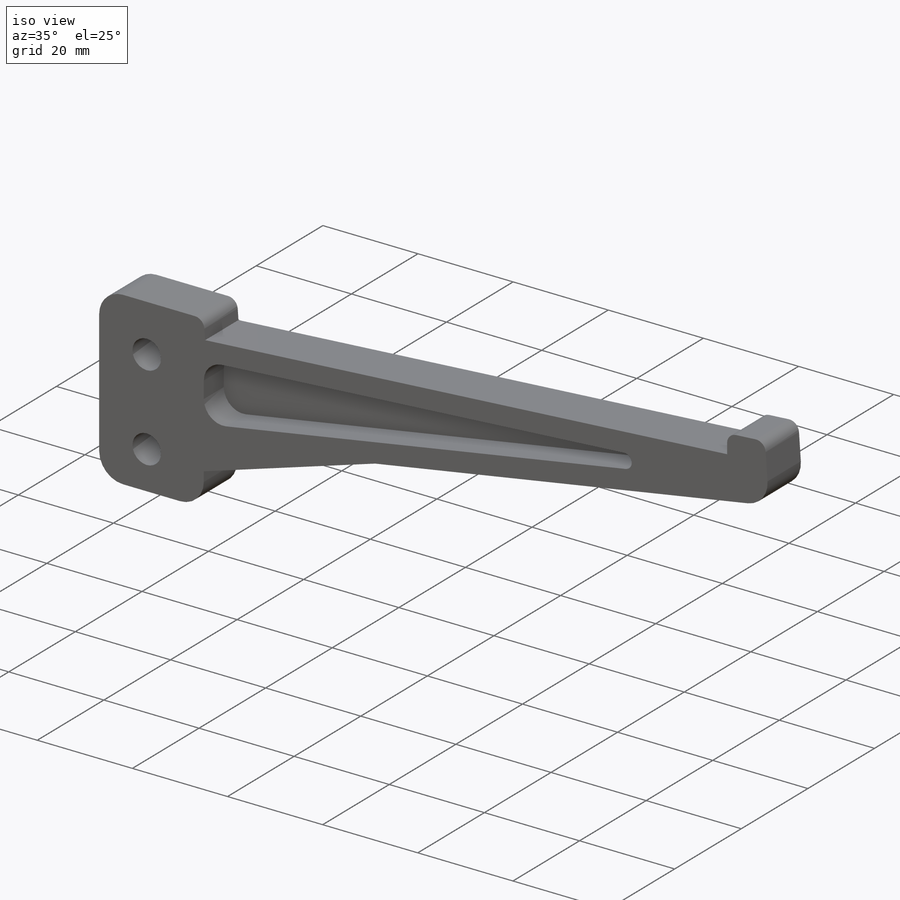
[diagram: iso view]
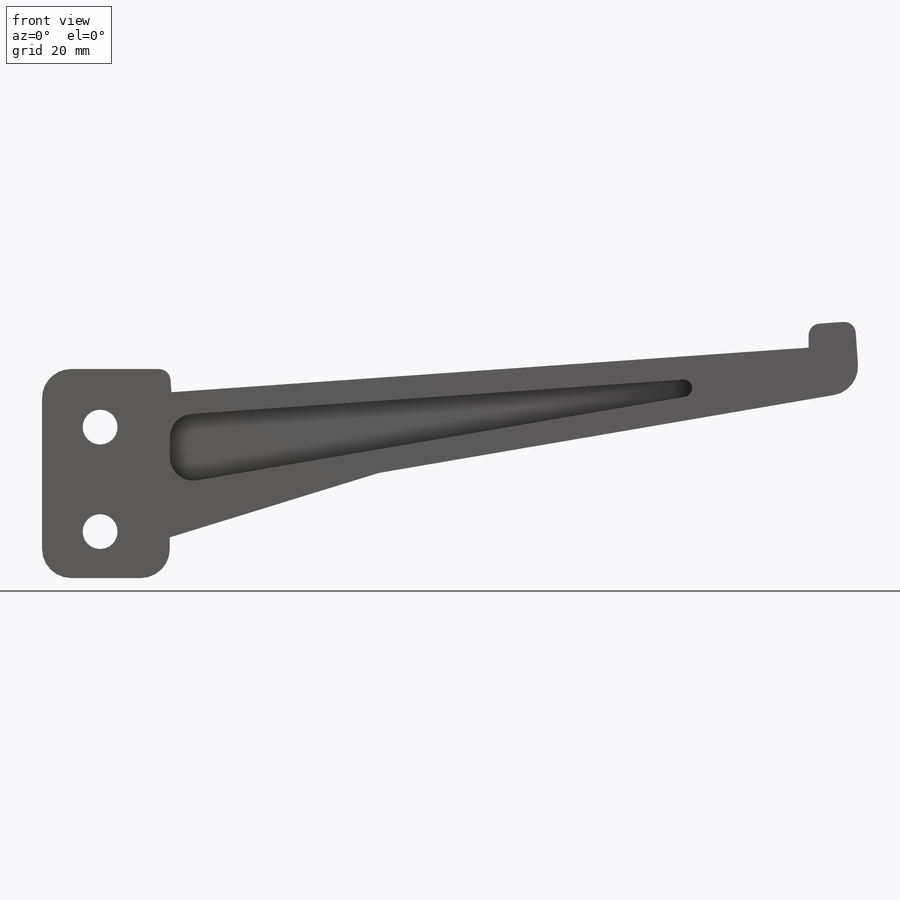
[diagram: front view]
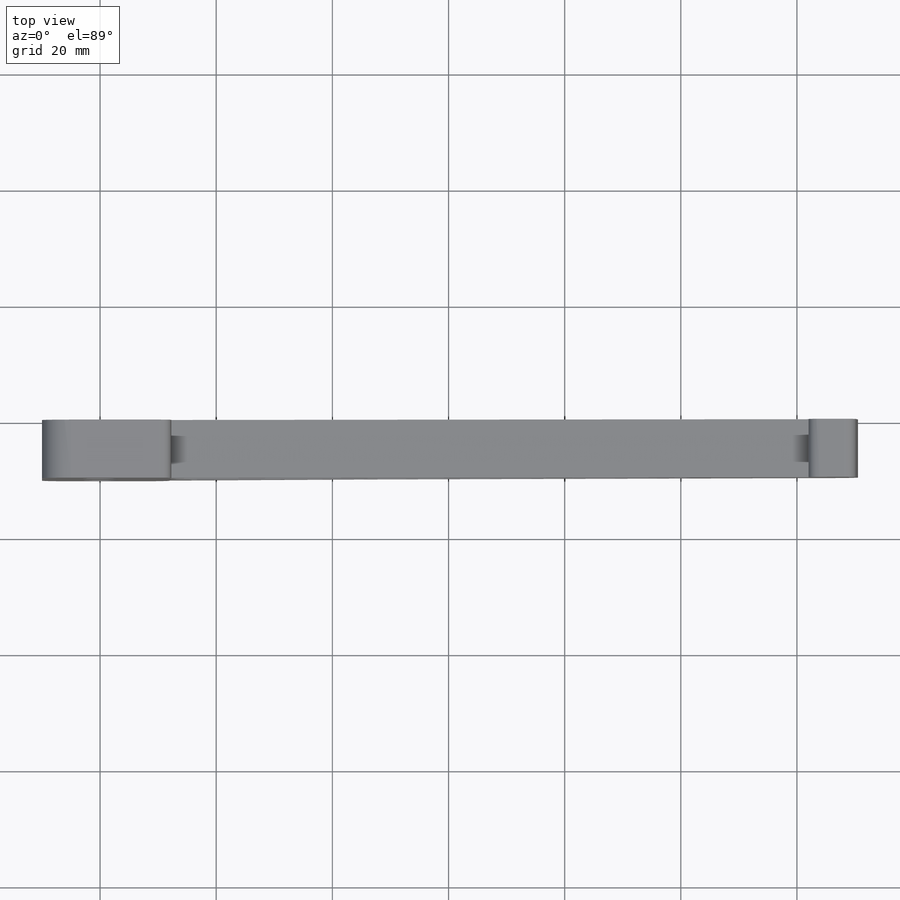
[diagram: top view]
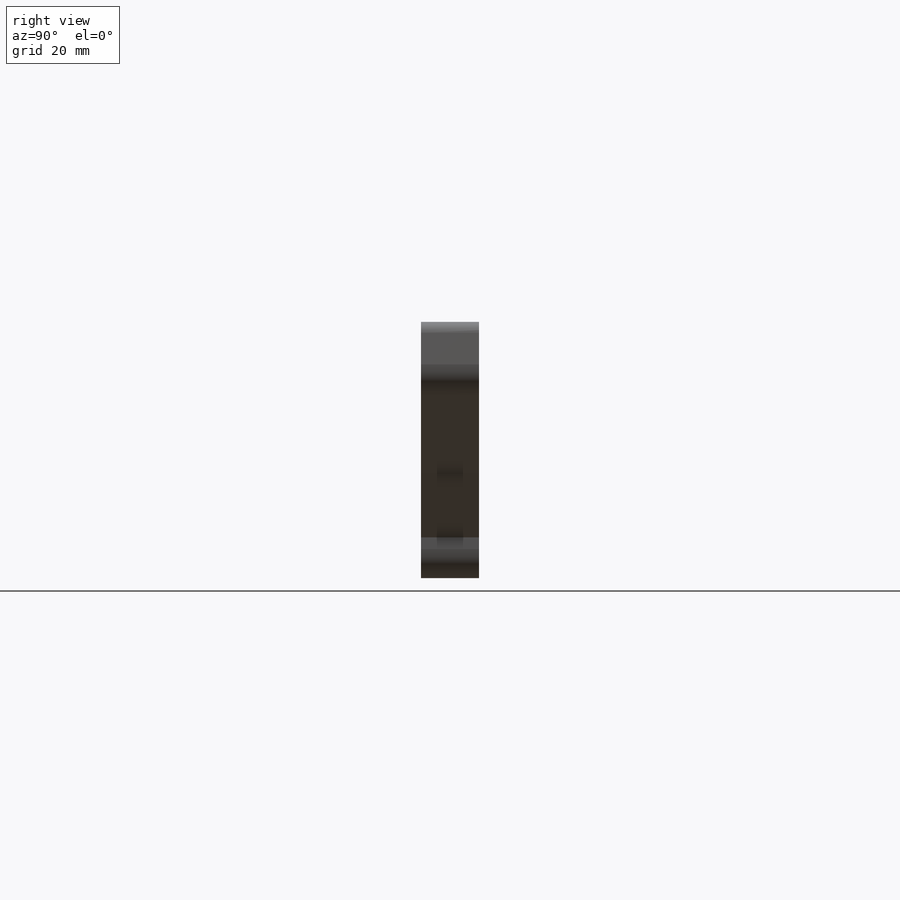
[diagram: right view]
SOLIDWORKS PART (.sldprt)
format: sldprt  version: not decoded by parser v0  size: 190,976 bytes
history: native  units: mm
features: sketch x3, extrude x2, material x1, cut_extrude x1 (+11 scaffold rows collapsed)
feature tree (18):
  scaffold x11  (default folders/planes/origin — collapsed)
  material  "Material <not specified>"
  sketch  "Sketch1"  dims[c1.D2=6.0mm c1.D13=5.0mm c1.D14=2.0mm c1.D1=18.0mm c1.D3=12.0mm c1.D4=10.0mm c1.D5=10.0mm c1.D6=8.0mm c1.D7=4.0mm c1.D8=110.0mm c1.D9=~21.427745mm c2.D9=4.0deg c2.D10=8.0mm c2.D11=12.0mm c2.D12=20.0mm]
  extrude  "Boss-Extrude1"  Depth=10mm
  sketch  "Sketch2"  dims[D1=1.5mm D4=4.0mm D2=4.0mm D3=4.0mm]
  cut_extrude  "Cut-Extrude1"  Depth=4mm
  sketch  "Sketch4"  dims[D1=25.0mm D2=36.0mm]
  extrude  "Boss-Extrude2"  [1 undecoded]
decode coverage: 5 of 6 modeling features carry decoded parameters
note: ~ marks probable driven/reference dimensions
note: 1 parameter value undecoded
note: suppression state not decoded; provenance and decode notes live in map.json
